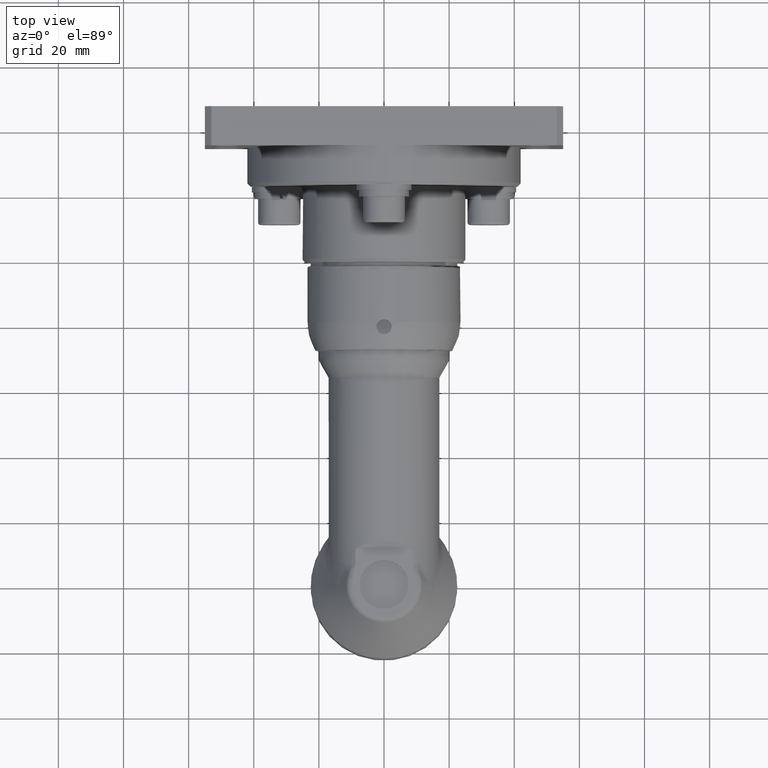
[diagram: clean part render]
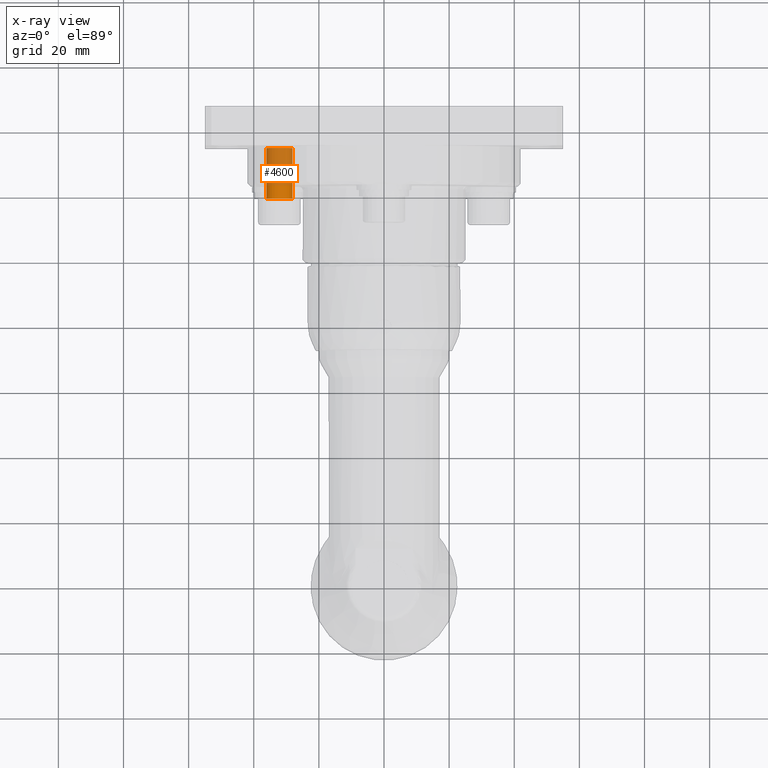
[diagram: x-ray — body ghosted, one internal face saturated and labeled with its STEP entity id]
A machine part, top view, then the same camera in x-ray: the body is ghosted and one INTERNAL B-rep face — a face not visible from any outside direction — is saturated and labeled: STEP entity #4600.
In plain terms, the highlighted cylindrical surface (bore or boss wall) has radius 4 mm, axis along (-0, 1, -0).
Its self-contained STEP definition (entity closure, byte-faithful):
#385=LINE('',#9226,#598);
#598=VECTOR('',#6687,4.);
#682=CYLINDRICAL_SURFACE('',#5239,4.);
#984=FACE_OUTER_BOUND('',#1291,.T.);
#1291=EDGE_LOOP('',(#4189,#4190,#4191,#4192,#4193,#4194));
#1580=CIRCLE('',#5068,4.);
#1660=CIRCLE('',#5235,4.);
#1661=CIRCLE('',#5236,4.);
#1662=CIRCLE('',#5237,4.);
#2017=VERTEX_POINT('',#8774);
#2132=VERTEX_POINT('',#9217);
#2133=VERTEX_POINT('',#9219);
#2134=VERTEX_POINT('',#9221);
#2635=EDGE_CURVE('',#2017,#2017,#1580,.T.);
#2823=EDGE_CURVE('',#2132,#2133,#1660,.T.);
#2824=EDGE_CURVE('',#2133,#2134,#1661,.T.);
#2825=EDGE_CURVE('',#2134,#2132,#1662,.T.);
#2826=EDGE_CURVE('',#2017,#2134,#385,.T.);
#4189=ORIENTED_EDGE('',*,*,#2635,.F.);
#4190=ORIENTED_EDGE('',*,*,#2826,.T.);
#4191=ORIENTED_EDGE('',*,*,#2824,.F.);
#4192=ORIENTED_EDGE('',*,*,#2823,.F.);
#4193=ORIENTED_EDGE('',*,*,#2825,.F.);
#4194=ORIENTED_EDGE('',*,*,#2826,.F.);
#4600=ADVANCED_FACE('',(#984),#682,.T.);
#5068=AXIS2_PLACEMENT_3D('',#8775,#6270,#6271);
#5235=AXIS2_PLACEMENT_3D('',#9220,#6677,#6678);
#5236=AXIS2_PLACEMENT_3D('',#9222,#6679,#6680);
#5237=AXIS2_PLACEMENT_3D('',#9223,#6681,#6682);
#5239=AXIS2_PLACEMENT_3D('',#9225,#6685,#6686);
#6270=DIRECTION('center_axis',(-4.73983281220064E-16,1.,-1.06971554646458E-15));
#6271=DIRECTION('ref_axis',(1.,1.18078783425247E-14,-1.88434337276339E-15));
#6677=DIRECTION('center_axis',(1.18085565380217E-14,-1.,1.06667977736522E-15));
#6678=DIRECTION('ref_axis',(-1.,-1.18078783425247E-14,1.76187869284865E-15));
#6679=DIRECTION('center_axis',(1.18085565380217E-14,-1.,1.06667977736522E-15));
#6680=DIRECTION('ref_axis',(-1.,-1.18078783425247E-14,1.76187869284865E-15));
#6681=DIRECTION('center_axis',(1.18085565380217E-14,-1.,1.06667977736522E-15));
#6682=DIRECTION('ref_axis',(-1.,-1.18078783425247E-14,1.76187869284865E-15));
#6685=DIRECTION('center_axis',(-1.18085565380217E-14,1.,-1.06667977736522E-15));
#6686=DIRECTION('ref_axis',(1.,1.18078783425247E-14,-1.88434337276339E-15));
#6687=DIRECTION('',(1.18085565380217E-14,-1.,1.06667977736522E-15));
#8774=CARTESIAN_POINT('',(-36.1476315703771,134.499999999999,-11.0693172515436));
#8775=CARTESIAN_POINT('Origin',(-32.1476315703771,134.499999999999,-11.0693172515436));
#9217=CARTESIAN_POINT('',(-32.1476315703769,119.,-15.0693172515435));
#9219=CARTESIAN_POINT('',(-28.1476315703769,119.,-11.0693172515435));
#9220=CARTESIAN_POINT('Origin',(-32.1476315703769,119.,-11.0693172515435));
#9221=CARTESIAN_POINT('',(-36.1476315703769,118.999999999999,-11.0693172515435));
#9222=CARTESIAN_POINT('Origin',(-32.1476315703769,119.,-11.0693172515435));
#9223=CARTESIAN_POINT('Origin',(-32.1476315703769,119.,-11.0693172515435));
#9225=CARTESIAN_POINT('Origin',(-32.1476315703771,133.275,-11.0693172515436));
#9226=CARTESIAN_POINT('',(-36.1476315703771,133.274999999999,-11.0693172515435));